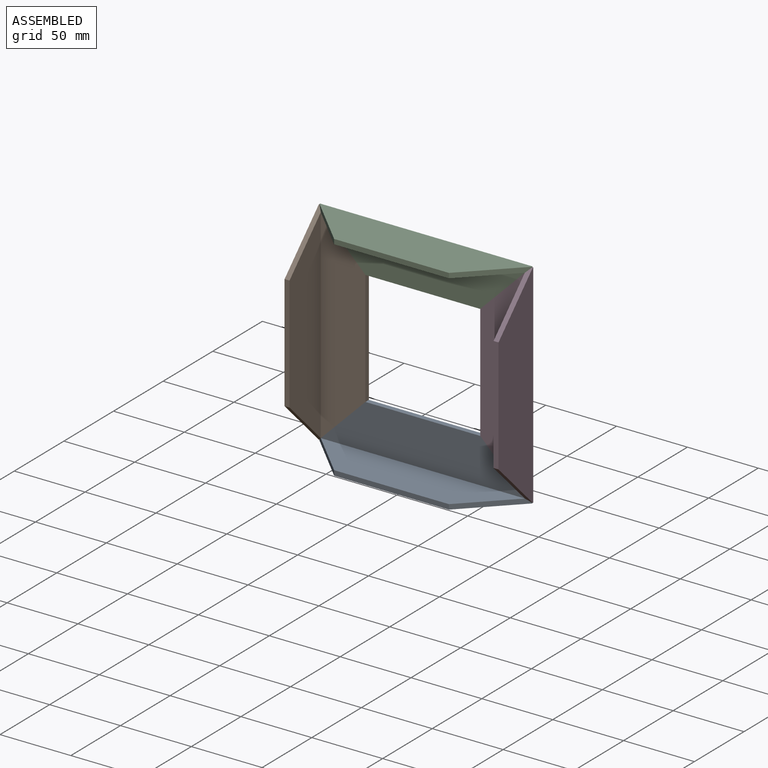
[diagram: assembled view]
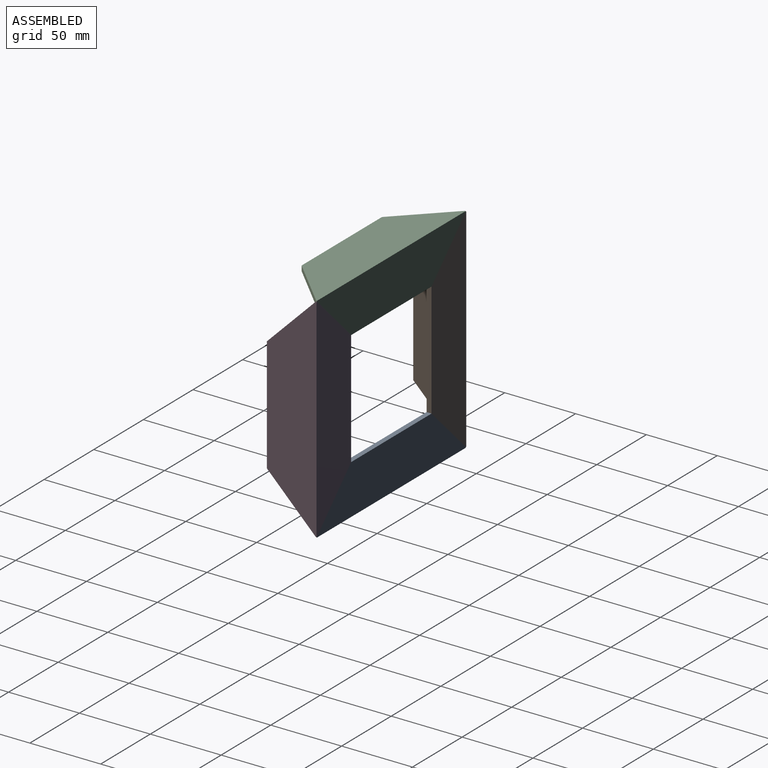
[diagram: assembled view, second angle]
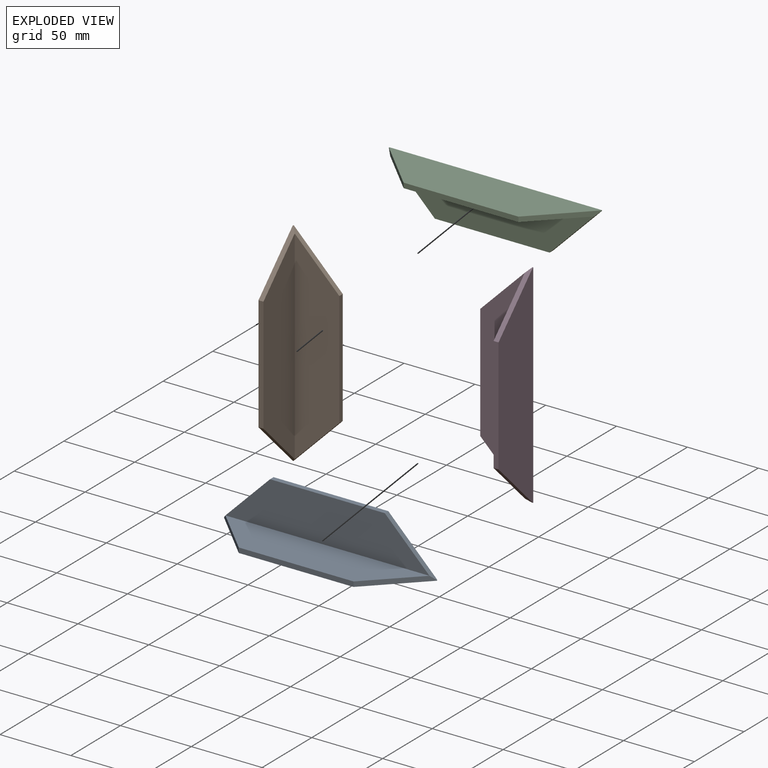
[diagram: exploded view]
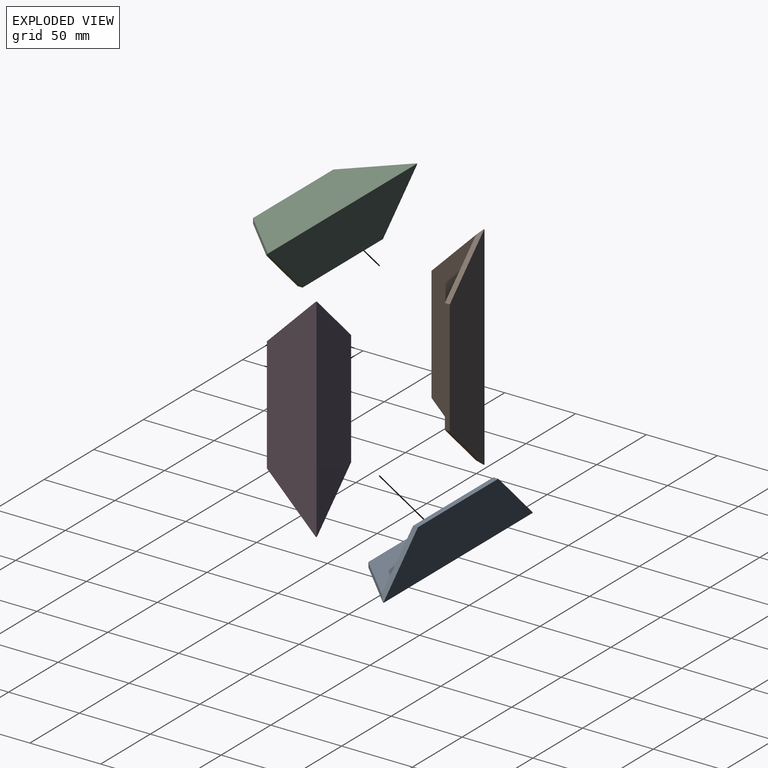
[diagram: exploded view, second angle]
ASSEMBLY  parts=4 mates=3
PART A: 12 faces, bbox 35x150x35 mm
  f0: plane 81x3.5mm, normal (0,0,1), area 283.5mm2, adj f1,f5,f8,f9
  f1: plane 150x35mm, normal (-1,0,0), area 4059.7mm2, adj f0,f2,f6,f7,f8,f9
  f2: plane 150x35mm, normal (0,0,-1), area 4059.8mm2, adj f1,f3,f6,f7,f10,f11
  f3: plane 81x3.5mm, normal (1,0,0), area 283.5mm2, adj f2,f4,f10,f11
  f4: plane 144x31.5mm, normal (0,0,1), area 3543.8mm2, adj f3,f5,f10,f11
  f5: plane 144x31.5mm, normal (1,0,0), area 3543.8mm2, adj f0,f4,f8,f9
  f6: plane 0.5x0.5mm, normal (0,-1,0), area 0.3mm2, adj f1,f2,f8,f10
  f7: plane 0.5x0.5mm, normal (0,1,0), area 0.3mm2, adj f1,f2,f9,f11
  f8: plane 34.5x34.5mm, normal (0,-0.71,0.71), area 164.4mm2, adj f0,f1,f5,f6,f10
  f9: plane 34.5x34.5mm, normal (0,0.71,0.71), area 164.4mm2, adj f0,f1,f5,f7,f11
  f10: plane 34.5x34.5mm, normal (0.71,-0.71,0), area 164.4mm2, adj f2,f3,f4,f6,f8
  f11: plane 34.5x34.5mm, normal (0.71,0.71,0), area 164.4mm2, adj f2,f3,f4,f7,f9
PART B: same geometry as A
PART C: same geometry as A
PART D: same geometry as A
PLACE A rot(axis=(0,0,-1),90deg) t=(78.16,62.27,139.35)mm
PLACE B rot(axis=(1,0,0),90deg) t=(-52.29,75.49,283.03)mm
PLACE C rot(axis=(0.58,0.58,-0.58),120deg) t=(78.16,75.49,263.48)mm
PLACE D rot(axis=(0,-0.71,0.71),180deg) t=(58.61,75.49,133.03)mm
MATE fastened D.f11 <-> A.f9  axis (-0.71,0,-0.71) through (60.28,80.59,150.9)mm
MATE fastened C.f10 <-> B.f11  axis (-0.71,0,-0.71) through (-53.09,78.81,264.28)mm
MATE fastened D.f10 <-> C.f11  axis (-0.71,0,0.71) through (60.91,82.31,265.78)mm
